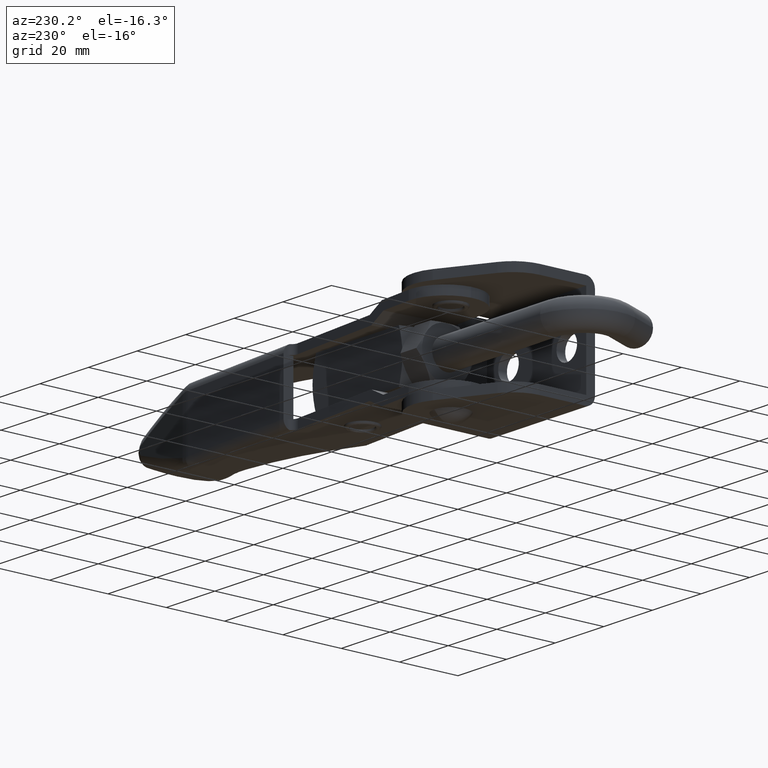
[diagram: clean part render]
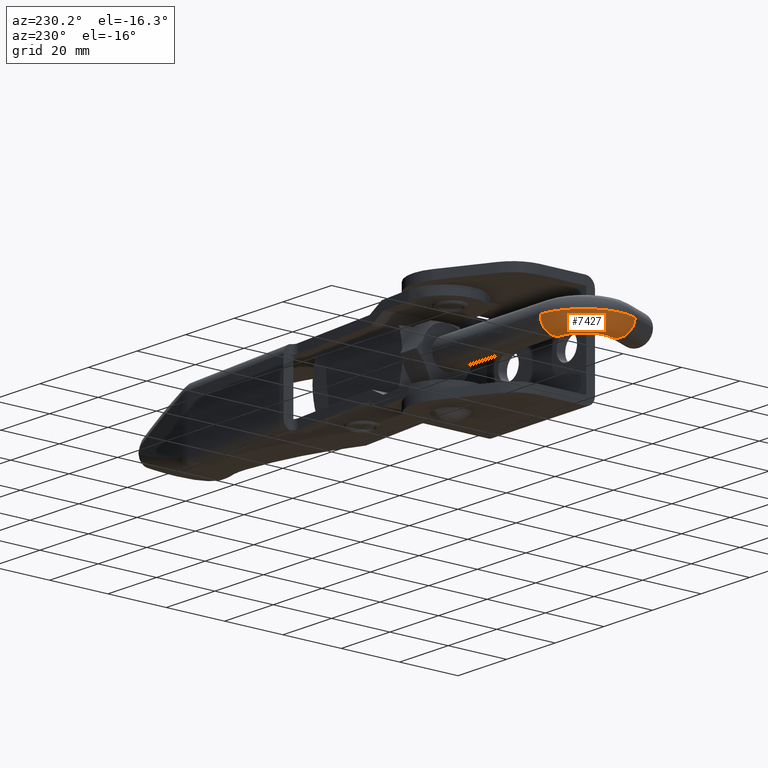
[diagram: same view with one face highlighted and labeled with its STEP entity id]
A machine part, auxiliary view. The second image highlights one B-rep face of the part: STEP entity #7427.
In plain terms, the highlighted toroidal blend (fillet) surface has major radius 10 mm and minor (blend) radius 5 mm.
Its self-contained STEP definition (entity closure, byte-faithful):
#4 = DIRECTION ( 'NONE',  ( 0.0000000000000000000, 4.186201327120098000E-030, -1.000000000000000000 ) ) ;
#322 = CARTESIAN_POINT ( 'NONE',  ( -69.00000000000005700, -10.00000000000000900, 0.0000000000000000000 ) ) ;
#364 = DIRECTION ( 'NONE',  ( 0.0000000000000000000, 4.186201327120098000E-030, -1.000000000000000000 ) ) ;
#514 = CARTESIAN_POINT ( 'NONE',  ( -69.00000000000005700, -10.00000000000000900, -6.123233995736763300E-016 ) ) ;
#1038 = EDGE_CURVE ( 'NONE', #8864, #7362, #4333, .T. ) ;
#1060 = DIRECTION ( 'NONE',  ( 0.0000000000000000000, -1.000000000000000000, -4.186201327120097300E-030 ) ) ;
#1087 = CIRCLE ( 'NONE', #8280, 4.999999999999997300 ) ;
#1229 = ORIENTED_EDGE ( 'NONE', *, *, #1038, .T. ) ;
#1239 = CARTESIAN_POINT ( 'NONE',  ( -69.00000000000005700, 2.093100663560047900E-029, -4.999999999999997300 ) ) ;
#1248 = DIRECTION ( 'NONE',  ( 0.0000000000000000000, -1.000000000000000000, -4.179267979320303900E-030 ) ) ;
#1757 = FACE_OUTER_BOUND ( 'NONE', #8061, .T. ) ;
#1819 = CARTESIAN_POINT ( 'NONE',  ( -69.00000000000005700, -5.000000000000000000, -6.123233995736707100E-016 ) ) ;
#1954 = ORIENTED_EDGE ( 'NONE', *, *, #5153, .F. ) ;
#2367 = DIRECTION ( 'NONE',  ( 0.0000000000000000000, 0.0000000000000000000, -1.000000000000000000 ) ) ;
#2499 = DIRECTION ( 'NONE',  ( 3.944304526105060800E-031, -4.186201327120098000E-030, 1.000000000000000000 ) ) ;
#2965 = CARTESIAN_POINT ( 'NONE',  ( -69.00000000000005700, 4.999999999999995600, 6.279301990680147100E-029 ) ) ;
#3218 = CARTESIAN_POINT ( 'NONE',  ( -82.64941906314818700, -16.22039863984361600, 6.123233995737091700E-016 ) ) ;
#3221 = AXIS2_PLACEMENT_3D ( 'NONE', #6082, #9076, #2367 ) ;
#3764 = AXIS2_PLACEMENT_3D ( 'NONE', #9199, #4809, #364 ) ;
#3922 = ORIENTED_EDGE ( 'NONE', *, *, #6823, .F. ) ;
#4059 = ORIENTED_EDGE ( 'NONE', *, *, #9407, .T. ) ;
#4284 = VERTEX_POINT ( 'NONE', #1819 ) ;
#4333 = CIRCLE ( 'NONE', #3221, 4.999999999999997300 ) ;
#4435 = DIRECTION ( 'NONE',  ( 1.000000000000000000, 0.0000000000000000000, 4.930380657631322000E-031 ) ) ;
#4713 = ORIENTED_EDGE ( 'NONE', *, *, #6614, .F. ) ;
#4796 = DIRECTION ( 'NONE',  ( 1.000000000000000000, 3.715121889393032000E-060, -3.944304526105061700E-031 ) ) ;
#4809 = DIRECTION ( 'NONE',  ( 1.000000000000000000, 0.0000000000000000000, 4.930380657631322000E-031 ) ) ;
#5153 = EDGE_CURVE ( 'NONE', #4284, #5883, #8169, .T. ) ;
#5399 = CIRCLE ( 'NONE', #5676, 15.00000000000000000 ) ;
#5529 = DIRECTION ( 'NONE',  ( 3.944304526105060800E-031, -4.186201327120098000E-030, 1.000000000000000000 ) ) ;
#5676 = AXIS2_PLACEMENT_3D ( 'NONE', #322, #5529, #1060 ) ;
#5734 = DIRECTION ( 'NONE',  ( 3.944304526105060800E-031, -4.186201327120098000E-030, 1.000000000000000000 ) ) ;
#5853 = CARTESIAN_POINT ( 'NONE',  ( -73.54980635438276700, -12.07346621328122000, 1.725633230170968100E-029 ) ) ;
#5883 = VERTEX_POINT ( 'NONE', #1239 ) ;
#5909 = VERTEX_POINT ( 'NONE', #2965 ) ;
#5921 = CIRCLE ( 'NONE', #8625, 4.999999999999997300 ) ;
#5956 = TOROIDAL_SURFACE ( 'NONE', #8704, 9.999999999999998200, 5.000000000000000000 ) ;
#6082 = CARTESIAN_POINT ( 'NONE',  ( -78.09961270876547700, -14.14693242656241900, 2.465190328815661900E-029 ) ) ;
#6614 = EDGE_CURVE ( 'NONE', #5883, #5909, #1087, .T. ) ;
#6823 = EDGE_CURVE ( 'NONE', #5909, #7362, #5399, .T. ) ;
#7362 = VERTEX_POINT ( 'NONE', #3218 ) ;
#7427 = ADVANCED_FACE ( 'NONE', ( #1757 ), #5956, .T. ) ;
#8061 = EDGE_LOOP ( 'NONE', ( #3922, #4713, #1954, #4059, #1229 ) ) ;
#8169 = CIRCLE ( 'NONE', #3764, 4.999999999999997300 ) ;
#8280 = AXIS2_PLACEMENT_3D ( 'NONE', #8825, #4435, #4 ) ;
#8625 = AXIS2_PLACEMENT_3D ( 'NONE', #514, #5734, #1248 ) ;
#8704 = AXIS2_PLACEMENT_3D ( 'NONE', #9185, #2499, #4796 ) ;
#8825 = CARTESIAN_POINT ( 'NONE',  ( -69.00000000000005700, 0.0000000000000000000, -2.465190328815661900E-029 ) ) ;
#8864 = VERTEX_POINT ( 'NONE', #5853 ) ;
#9076 = DIRECTION ( 'NONE',  ( -0.4146932426562396400, 0.9099612708765429900, -4.067564042545839300E-030 ) ) ;
#9185 = CARTESIAN_POINT ( 'NONE',  ( -69.00000000000005700, -10.00000000000000900, 0.0000000000000000000 ) ) ;
#9199 = CARTESIAN_POINT ( 'NONE',  ( -69.00000000000005700, 0.0000000000000000000, -2.465190328815661900E-029 ) ) ;
#9407 = EDGE_CURVE ( 'NONE', #4284, #8864, #5921, .T. ) ;